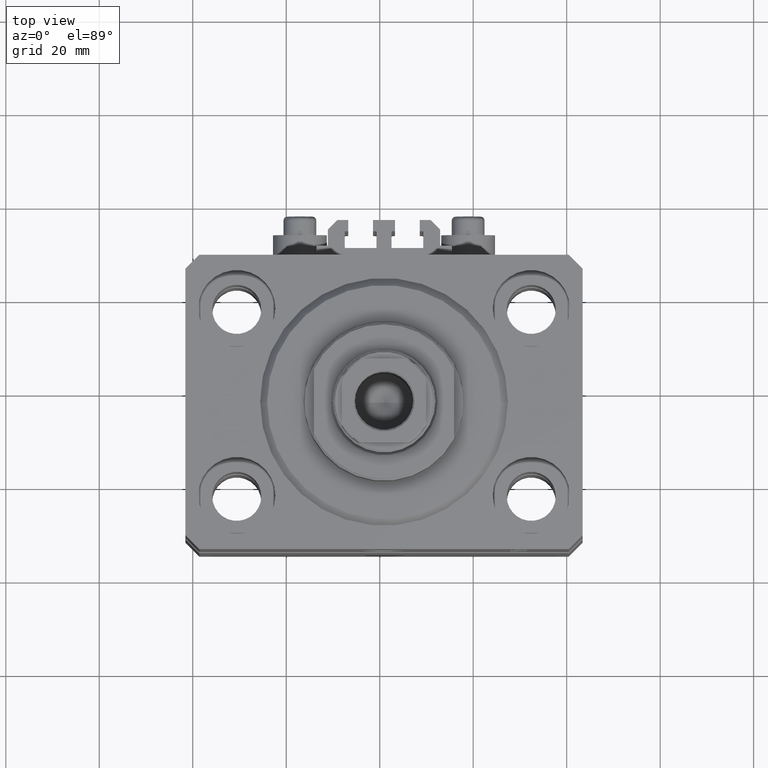
[diagram: clean part render]
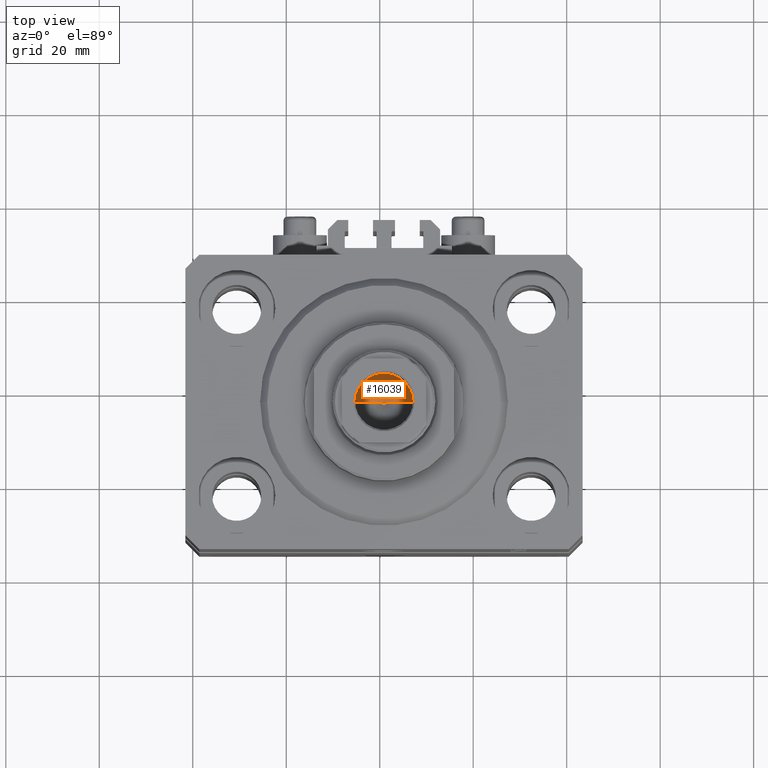
[diagram: same view with one face highlighted and labeled with its STEP entity id]
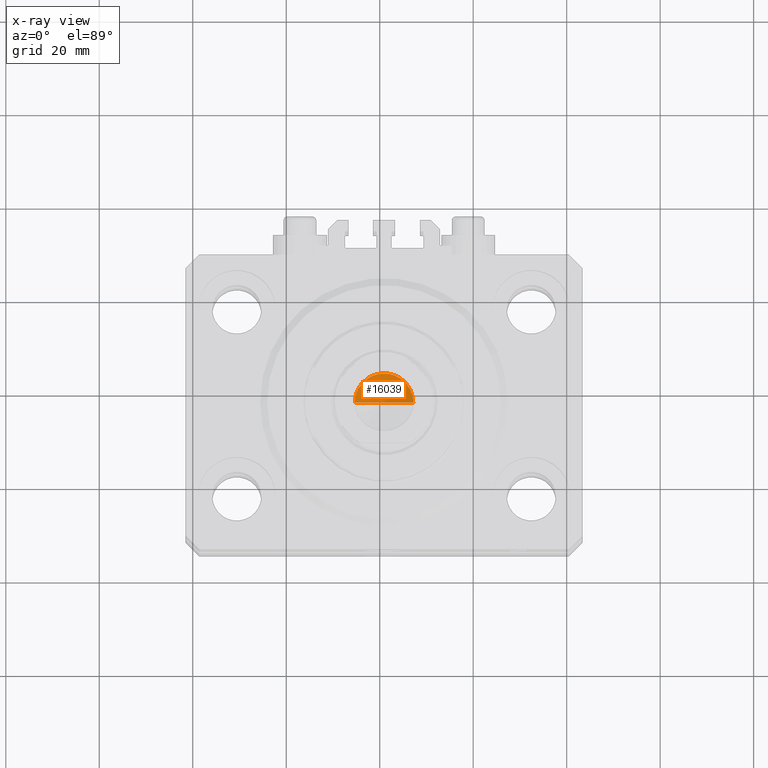
[diagram: x-ray of the same camera — body ghosted, the highlighted face saturated]
A machine part, top view. The second image highlights one B-rep face of the part: STEP entity #16039.
The next image is the same camera in x-ray: the body ghosted, the highlighted face saturated — about 0% of this face is hidden behind the body in this view.
In plain terms, the highlighted conical surface has half-angle 59 deg.
Its self-contained STEP definition (entity closure, byte-faithful):
#1082 = CONICAL_SURFACE ( 'NONE', #8060, 6.249999999999993783, 1.029744258676652979 ) ;
#1592 = CIRCLE ( 'NONE', #29574, 6.249999999999993783 ) ;
#6123 = EDGE_CURVE ( 'NONE', #41335, #7889, #18418, .T. ) ;
#7889 = VERTEX_POINT ( 'NONE', #47005 ) ;
#8060 = AXIS2_PLACEMENT_3D ( 'NONE', #41783, #34485, #45914 ) ;
#9720 = LINE ( 'NONE', #17265, #30074 ) ;
#9987 = ORIENTED_EDGE ( 'NONE', *, *, #6123, .T. ) ;
#10613 = CARTESIAN_POINT ( 'NONE',  ( 0.000000000000000000, 0.000000000000000000, 73.50000000000001421 ) ) ;
#13245 = ORIENTED_EDGE ( 'NONE', *, *, #23844, .F. ) ;
#14772 = DIRECTION ( 'NONE',  ( 0.8571673007021115565, 0.000000000000000000, 0.5150380749100554878 ) ) ;
#16039 = ADVANCED_FACE ( 'NONE', ( #23777 ), #1082, .F. ) ;
#17091 = ORIENTED_EDGE ( 'NONE', *, *, #35384, .T. ) ;
#17265 = CARTESIAN_POINT ( 'NONE',  ( -6.249999999999993783, 7.654042494670949718E-16, 73.50000000000001421 ) ) ;
#18391 = DIRECTION ( 'NONE',  ( -0.000000000000000000, -0.000000000000000000, 1.000000000000000000 ) ) ;
#18418 = LINE ( 'NONE', #36215, #19284 ) ;
#19284 = VECTOR ( 'NONE', #14772, 1000.000000000000000 ) ;
#23777 = FACE_OUTER_BOUND ( 'NONE', #42007, .T. ) ;
#23844 = EDGE_CURVE ( 'NONE', #41335, #32297, #9720, .T. ) ;
#25239 = DIRECTION ( 'NONE',  ( 1.000000000000000000, 0.000000000000000000, 0.000000000000000000 ) ) ;
#26655 = CARTESIAN_POINT ( 'NONE',  ( -7.434177670704979810E-15, 0.000000000000000000, 69.74462113107774996 ) ) ;
#29198 = CARTESIAN_POINT ( 'NONE',  ( -6.249999999999993783, 7.654042494670949718E-16, 73.50000000000001421 ) ) ;
#29574 = AXIS2_PLACEMENT_3D ( 'NONE', #10613, #18391, #25239 ) ;
#30074 = VECTOR ( 'NONE', #35277, 1000.000000000000000 ) ;
#32297 = VERTEX_POINT ( 'NONE', #29198 ) ;
#34485 = DIRECTION ( 'NONE',  ( -0.000000000000000000, -0.000000000000000000, 1.000000000000000000 ) ) ;
#35277 = DIRECTION ( 'NONE',  ( -0.8571673007021115565, 1.049727191138617710E-16, 0.5150380749100554878 ) ) ;
#35384 = EDGE_CURVE ( 'NONE', #7889, #32297, #1592, .T. ) ;
#36215 = CARTESIAN_POINT ( 'NONE',  ( 6.249999999999993783, 0.000000000000000000, 73.50000000000001421 ) ) ;
#41335 = VERTEX_POINT ( 'NONE', #26655 ) ;
#41783 = CARTESIAN_POINT ( 'NONE',  ( 0.000000000000000000, 0.000000000000000000, 73.50000000000001421 ) ) ;
#42007 = EDGE_LOOP ( 'NONE', ( #13245, #9987, #17091 ) ) ;
#45914 = DIRECTION ( 'NONE',  ( 1.000000000000000000, 0.000000000000000000, 0.000000000000000000 ) ) ;
#47005 = CARTESIAN_POINT ( 'NONE',  ( 6.249999999999993783, 0.000000000000000000, 73.50000000000001421 ) ) ;